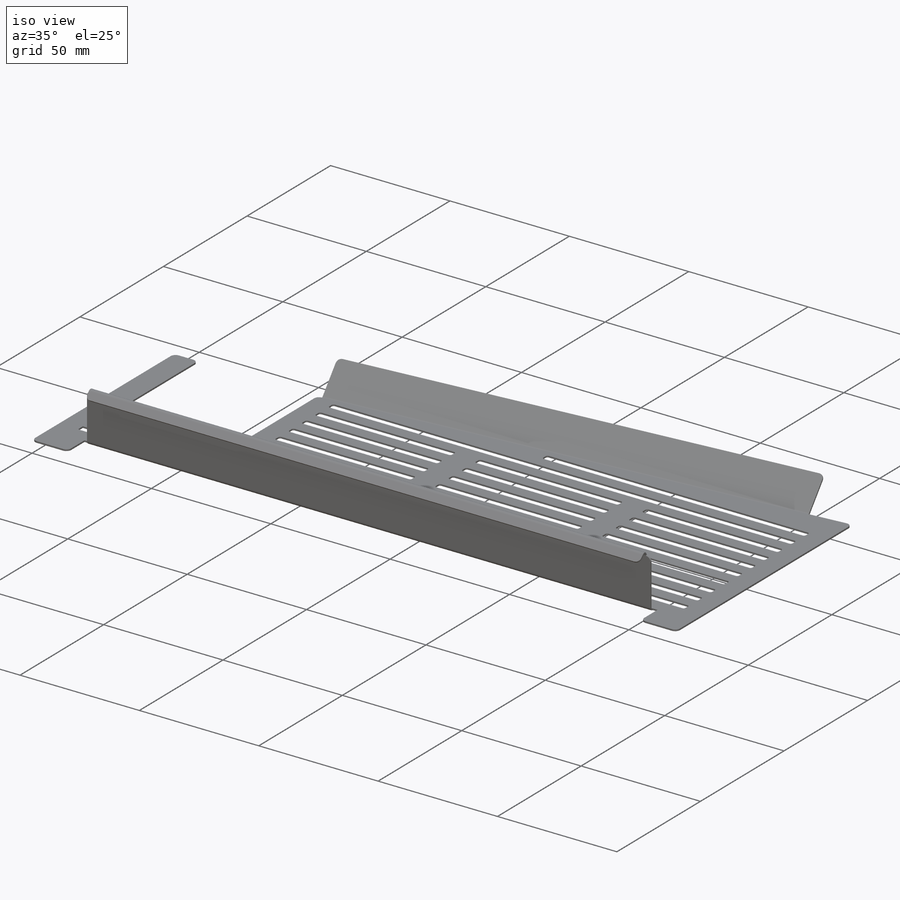
[diagram: iso view]
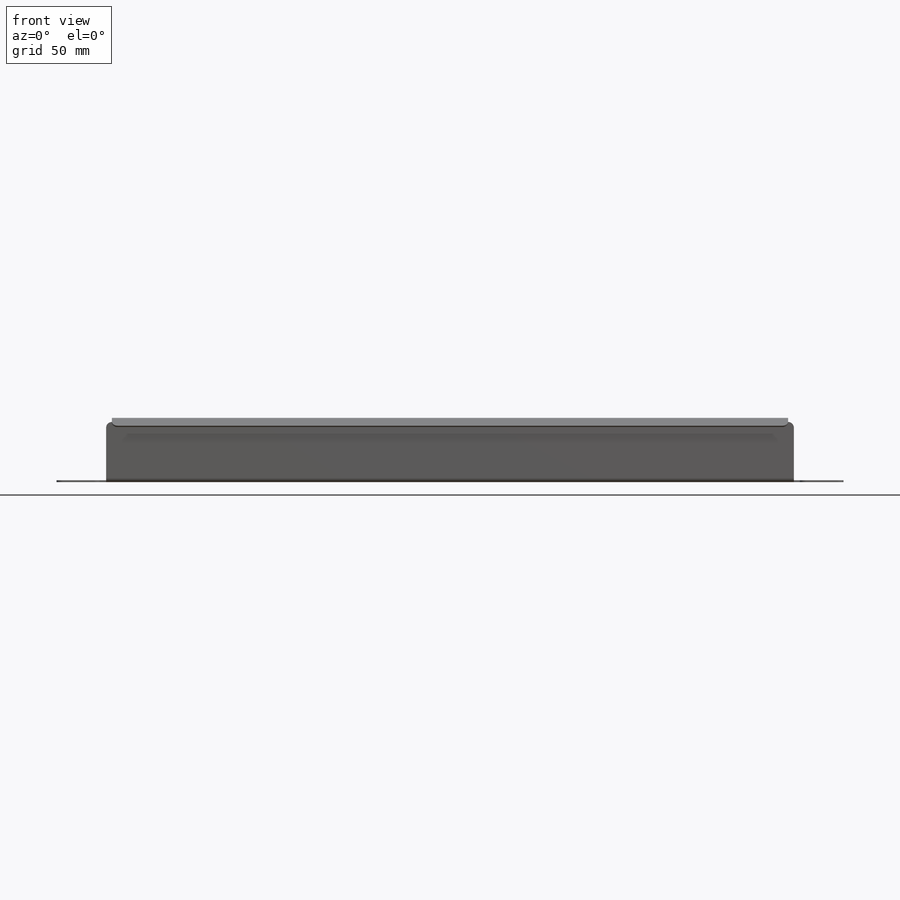
[diagram: front view]
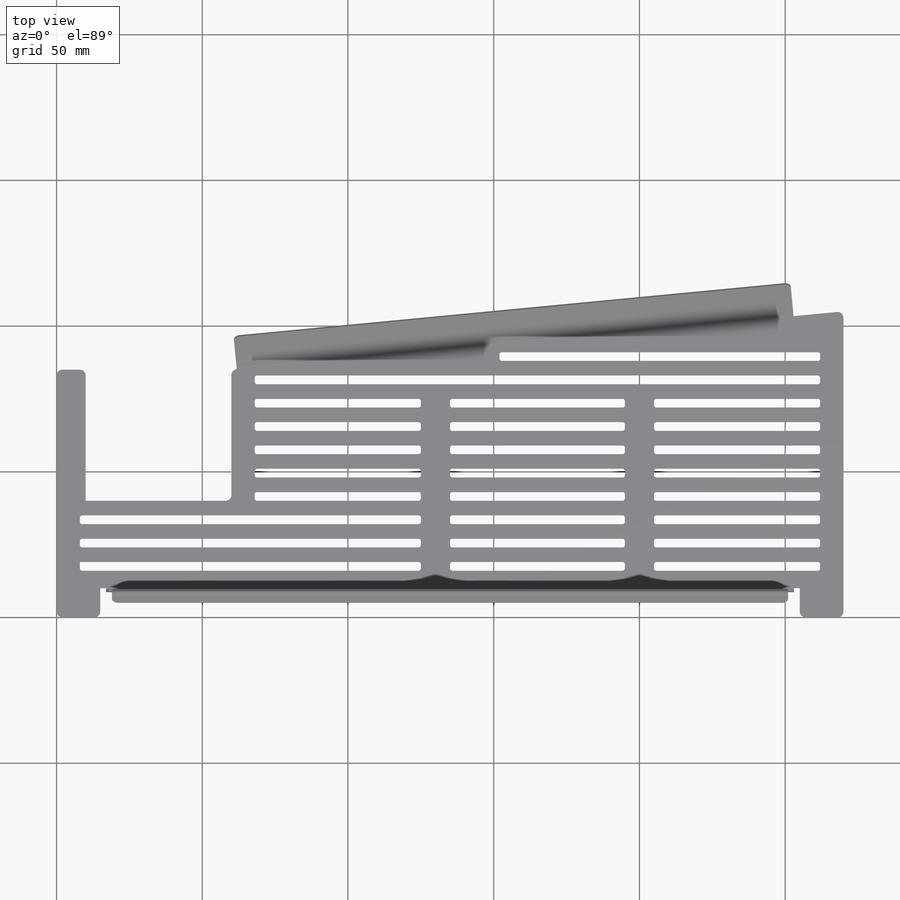
[diagram: top view]
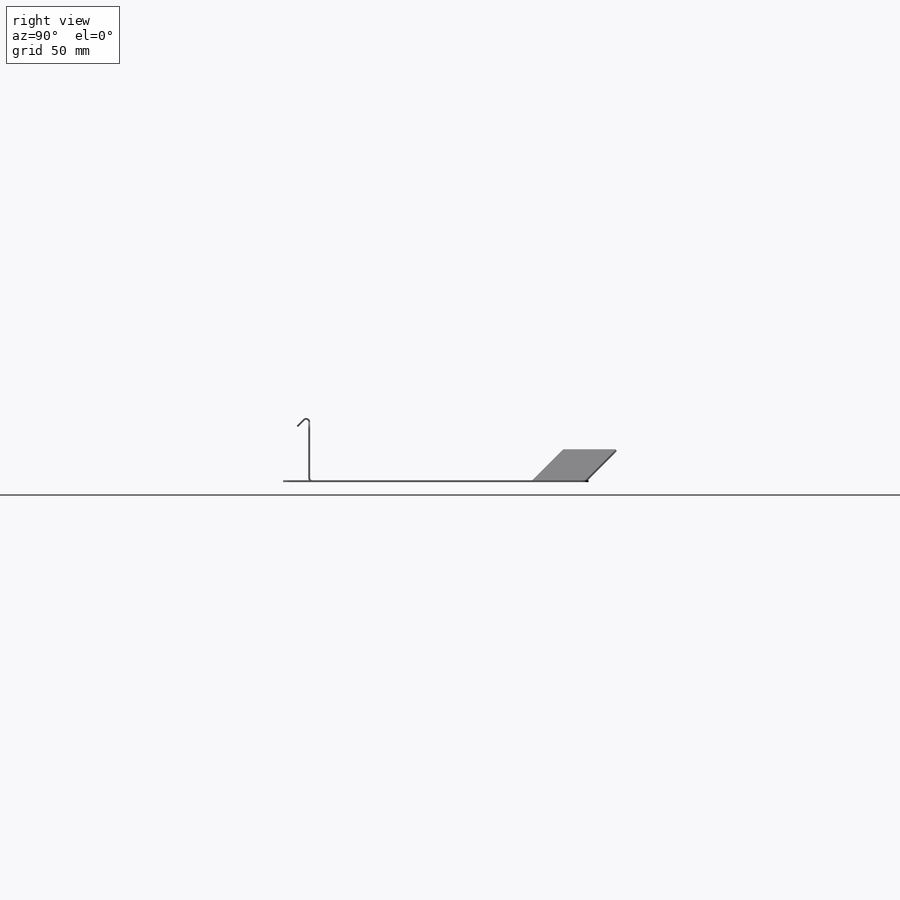
[diagram: right view]
SOLIDWORKS PART (.sldprt)
format: sldprt  version: not decoded by parser v0  size: 989,696 bytes
history: native  units: mm
features: sketch x8, fillet x3, sheet_metal_op x2, cut_extrude x2, material x1 + 3 further entries (+11 scaffold rows collapsed; 1 parser-record rows omitted)
feature tree (31):
  scaffold x11  (default folders/planes/origin — collapsed)
  material  "AISI 304"
  sketch  "Sketch1"  dims[c1.D1=75.0mm c1.D2=270.0mm c1.D3=105.0mm c1.D4=50.0mm c1.D5=0.01mm c1.D6=30.0mm c2.D1=40.0mm c2.D4=50.0mm c2.D5=45.0mm c2.D6=10.0mm c3.D4=50.0mm]
  sheet_metal_op  "Sheet-Metal1"
  sheet_metal_op  "Vertical Wall"
  fillet  "Fillet1"  Radius=2mm
  sketch  "Sketch4"  dims[c1.D1=15.0mm c2.D1=0.7366mm c2.D4=45.0deg c2.D5=1.0 c2.D8=0.3175mm c2.D9=0.3175mm c3.D1=0.7366mm c3.D2=500.0mm c3.D3=0.0mm c3.D6=10.0mm c3.D7=15.0mm]
  sketch  "Sketch8"  dims[D1=10.0mm D2=15.0mm D3=15.0mm]
  cut_extrude  "Cut-Extrude1"  Depth=10mm
  sketch  "Sketch11"  dims[c1.D1=20.0mm c1.D2=2.0mm c1.D3=2.0mm c2.D1=0.7366mm c2.D4=90.0deg c2.D5=2.0 c2.D8=0.3175mm c2.D9=0.3175mm c3.D1=0.7366mm c3.D2=500.0mm c3.D3=0.0mm c3.D6=10.0mm c3.D7=20.0mm c4.D1=2.0mm c4.D0=2.0mm c5.D0=2.0mm c5.D7=5.0mm]
  sketch  "Sketch12"  dims[c1.D1=8.0mm c1.D2=8.0mm c1.D3=8.0mm c1.D4=3.0mm c1.D5=5.0mm c1.D6=5.0mm c1.D7=65.0mm c1.D8=65.0mm c1.D9=8.0mm c1.D10=5.0mm c1.D11=5.0mm c1.D12=5.0mm c1.D13=5.0mm c1.D14=5.0mm c2.D9=5.0mm c2.D15=5.0mm c2.D5=10.0mm c2.D6=10.0mm c2.D16=5.0mm c2.D17=5.0mm c2.D18=110.0mm]
  cut_extrude  "Cut-Extrude16"  [1 undecoded]
  fillet  "Fillet2"  Radius=0.8mm
  sketch  "Sketch15"  dims[c1.D1=0.7366mm c1.D4=135.0deg c1.D5=3.0 c1.D8=0.3175mm c1.D9=0.3175mm c2.D1=0.7366mm c2.D2=500.0mm c2.D3=0.0mm c2.D6=10.0mm c2.D7=5.0mm]
  fillet  "Fillet3"  Radius=2mm
  "Flat-Pattern1"
  sketch  "Bend-Lines1"
  sketch  "Bounding-Box1"
  "Flatten-<EdgeBend3>1"
  "Flatten-<EdgeBend4>1"
  parser-record x1  (decoder bookkeeping rows leaked as tree rows — omitted from the tree; the rows remain in map.json)
decode coverage: 10 of 15 modeling features carry decoded parameters; 3 rows unclassified (native names shown)
note: 1 parameter value undecoded
note: suppression state not decoded; provenance and decode notes live in map.json
